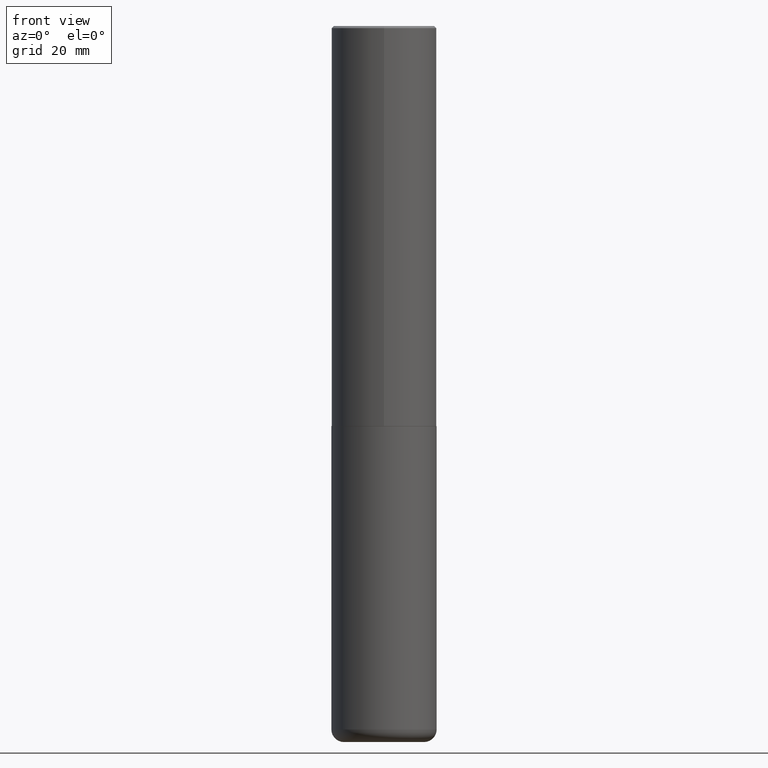
[diagram: clean part render]
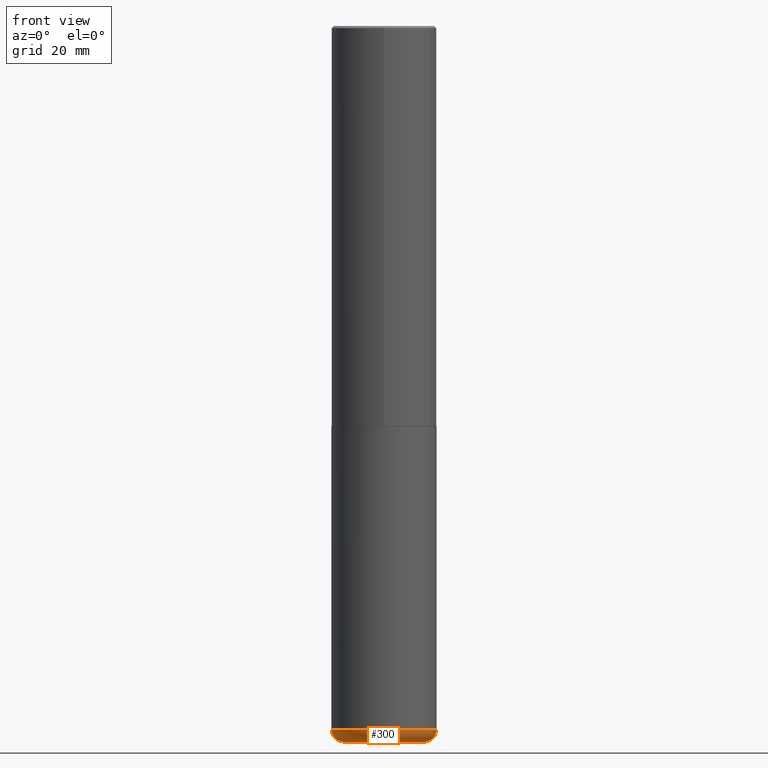
[diagram: same view with one face highlighted and labeled with its STEP entity id]
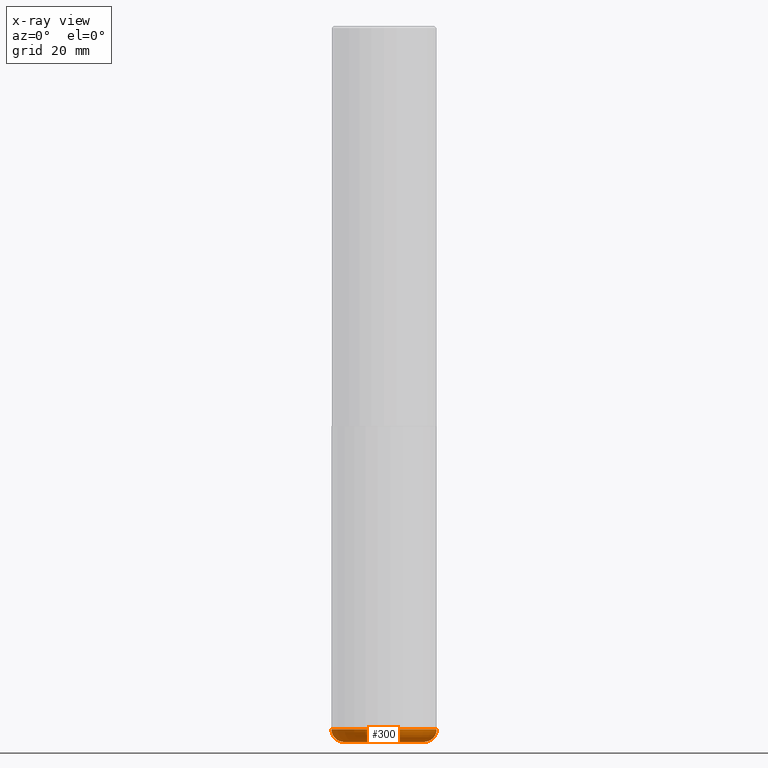
[diagram: x-ray of the same camera — body ghosted, the highlighted face saturated]
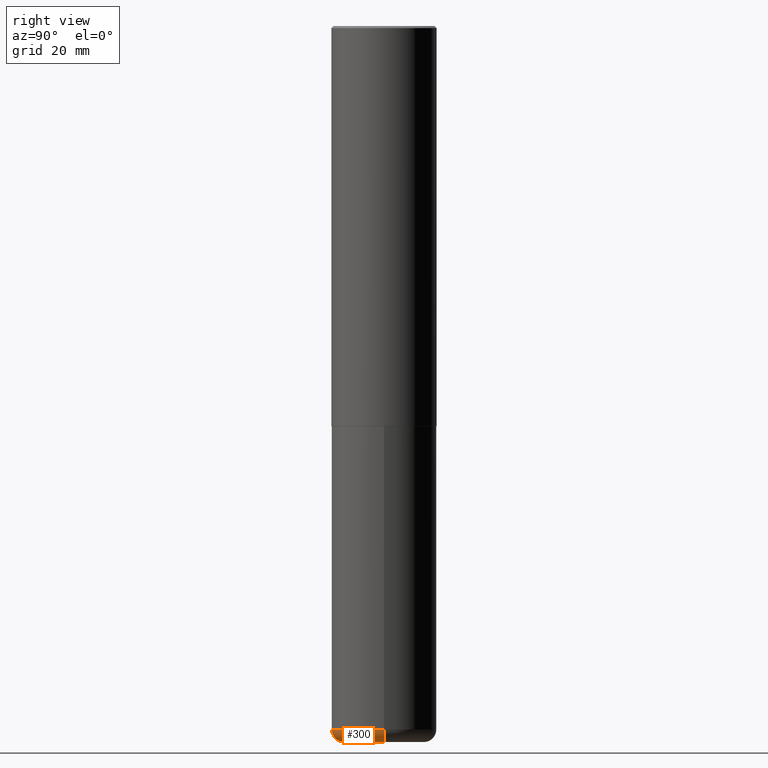
[diagram: same view with one face highlighted and labeled with its STEP entity id]
A machine part, front view. The second image highlights one B-rep face of the part: STEP entity #300.
The next image is the same camera in x-ray: the body ghosted, the highlighted face saturated — about 0% of this face is hidden behind the body in this view.
A second angle (right view) of the same face is appended — the face is thin or edge-on in the first view.
In plain terms, the highlighted toroidal blend (fillet) surface has major radius 9.5009 mm and minor (blend) radius 2.9997 mm.
Its self-contained STEP definition (entity closure, byte-faithful):
#48 = AXIS2_PLACEMENT_3D ( 'NONE', #158, #186, #250 ) ;
#51 = CARTESIAN_POINT ( 'NONE',  ( 1.607846830690603466E-28, -2.295579150662591525E-14, -6.574799999999999756 ) ) ;
#59 = EDGE_CURVE ( 'NONE', #356, #235, #368, .T. ) ;
#77 = DIRECTION ( 'NONE',  ( 1.000000000000000000, -6.982962677686270655E-15, 0.000000000000000000 ) ) ;
#84 = CARTESIAN_POINT ( 'NONE',  ( 0.3740499999999999381, -2.556776869621446119E-14, -6.574799999999999756 ) ) ;
#92 = CARTESIAN_POINT ( 'NONE',  ( -0.3740499999999999381, -2.008460289110760576E-14, -6.692899999999999849 ) ) ;
#96 = AXIS2_PLACEMENT_3D ( 'NONE', #84, #273, #77 ) ;
#99 = VERTEX_POINT ( 'NONE', #397 ) ;
#101 = ORIENTED_EDGE ( 'NONE', *, *, #59, .T. ) ;
#103 = ORIENTED_EDGE ( 'NONE', *, *, #124, .T. ) ;
#106 = EDGE_CURVE ( 'NONE', #356, #263, #286, .T. ) ;
#109 = ORIENTED_EDGE ( 'NONE', *, *, #140, .F. ) ;
#116 = CARTESIAN_POINT ( 'NONE',  ( 1.636727817291649966E-28, -2.336813545274328780E-14, -6.692899999999999849 ) ) ;
#117 = DIRECTION ( 'NONE',  ( 7.105427357601001859E-15, 1.000000000000000000, -3.491481338843145583E-15 ) ) ;
#124 = EDGE_CURVE ( 'NONE', #235, #99, #310, .T. ) ;
#135 = AXIS2_PLACEMENT_3D ( 'NONE', #184, #117, #364 ) ;
#140 = EDGE_CURVE ( 'NONE', #263, #99, #303, .T. ) ;
#149 = DIRECTION ( 'NONE',  ( 1.000000000000000000, -6.982962677686265133E-15, 0.000000000000000000 ) ) ;
#158 = CARTESIAN_POINT ( 'NONE',  ( 1.607846830690603466E-28, -2.295579150662591525E-14, -6.574799999999999756 ) ) ;
#161 = FACE_OUTER_BOUND ( 'NONE', #192, .T. ) ;
#176 = DIRECTION ( 'NONE',  ( -2.445468806185136597E-29, 3.491481338843145583E-15, 1.000000000000000000 ) ) ;
#184 = CARTESIAN_POINT ( 'NONE',  ( -0.3740499999999999381, -2.029800640351526055E-14, -6.574799999999999756 ) ) ;
#186 = DIRECTION ( 'NONE',  ( -2.445468806185136597E-29, 3.491481338843145583E-15, 1.000000000000000000 ) ) ;
#189 = CARTESIAN_POINT ( 'NONE',  ( 0.3740499999999999381, -2.598011264233183690E-14, -6.692899999999999849 ) ) ;
#192 = EDGE_LOOP ( 'NONE', ( #385, #101, #103, #109 ) ) ;
#235 = VERTEX_POINT ( 'NONE', #189 ) ;
#250 = DIRECTION ( 'NONE',  ( 1.000000000000000000, -6.982962677686266711E-15, 4.883557194083112340E-29 ) ) ;
#263 = VERTEX_POINT ( 'NONE', #407 ) ;
#273 = DIRECTION ( 'NONE',  ( -6.982962677686266711E-15, -1.000000000000000000, 3.491481338843145583E-15 ) ) ;
#286 = CIRCLE ( 'NONE', #135, 0.1181000000000000383 ) ;
#300 = ADVANCED_FACE ( 'NONE', ( #161 ), #376, .T. ) ;
#301 = DIRECTION ( 'NONE',  ( 1.000000000000000000, -6.982962677686265133E-15, 0.000000000000000000 ) ) ;
#303 = CIRCLE ( 'NONE', #324, 0.4921500000000000319 ) ;
#308 = DIRECTION ( 'NONE',  ( -2.445468806185136597E-29, 3.491481338843145583E-15, 1.000000000000000000 ) ) ;
#310 = CIRCLE ( 'NONE', #96, 0.1181000000000000383 ) ;
#324 = AXIS2_PLACEMENT_3D ( 'NONE', #51, #308, #149 ) ;
#356 = VERTEX_POINT ( 'NONE', #92 ) ;
#364 = DIRECTION ( 'NONE',  ( -1.000000000000000000, 7.105427357601001859E-15, 0.000000000000000000 ) ) ;
#368 = CIRCLE ( 'NONE', #390, 0.3740499999999999381 ) ;
#376 = TOROIDAL_SURFACE ( 'NONE', #48, 0.3740499999999999381, 0.1181000000000000660 ) ;
#385 = ORIENTED_EDGE ( 'NONE', *, *, #106, .F. ) ;
#390 = AXIS2_PLACEMENT_3D ( 'NONE', #116, #176, #301 ) ;
#397 = CARTESIAN_POINT ( 'NONE',  ( 0.4921499999999999764, -2.639245658844920945E-14, -6.574799999999999756 ) ) ;
#407 = CARTESIAN_POINT ( 'NONE',  ( -0.4921499999999999764, -1.945885543258258157E-14, -6.574799999999999756 ) ) ;